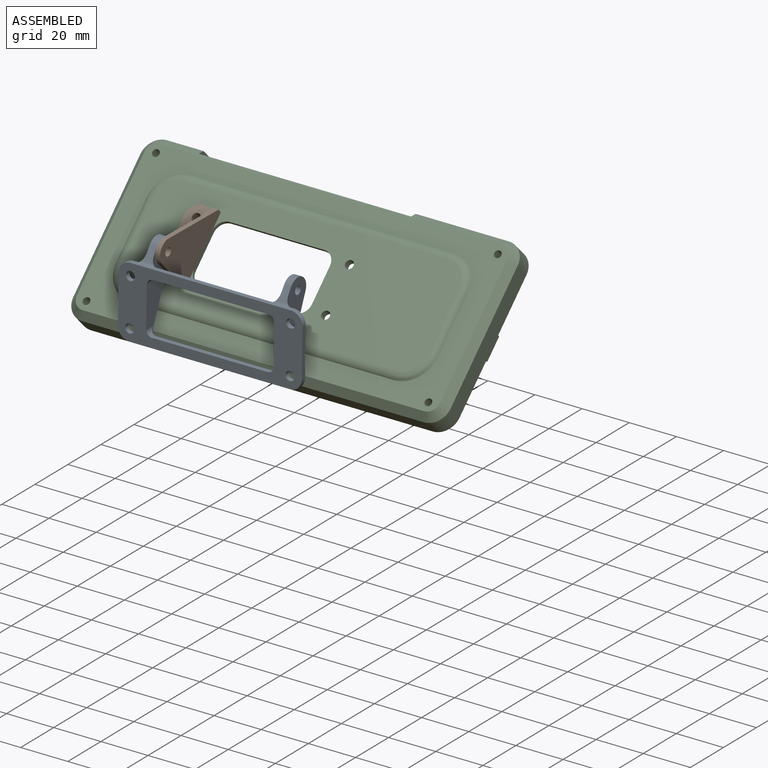
[diagram: assembled view]
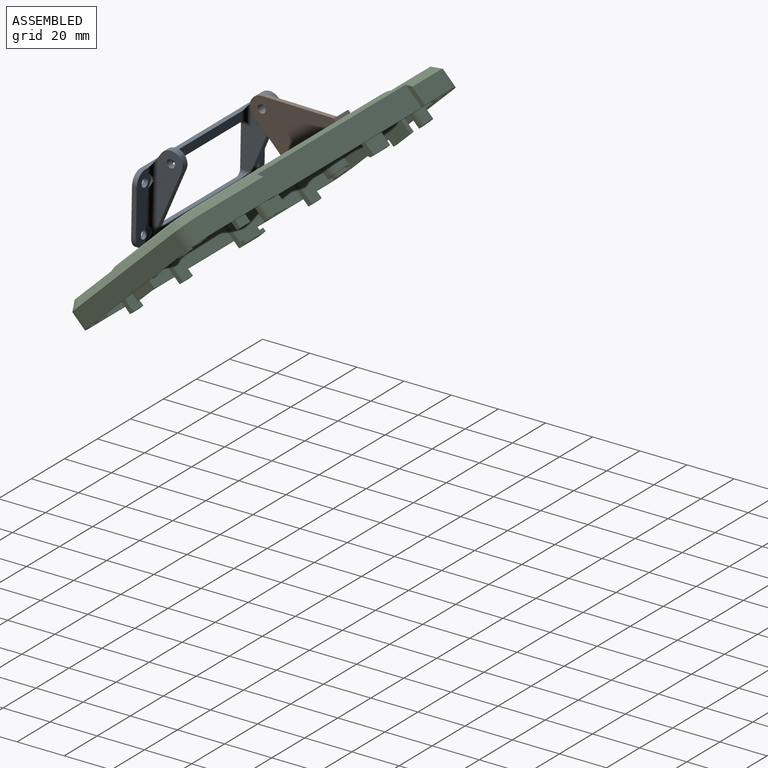
[diagram: assembled view, second angle]
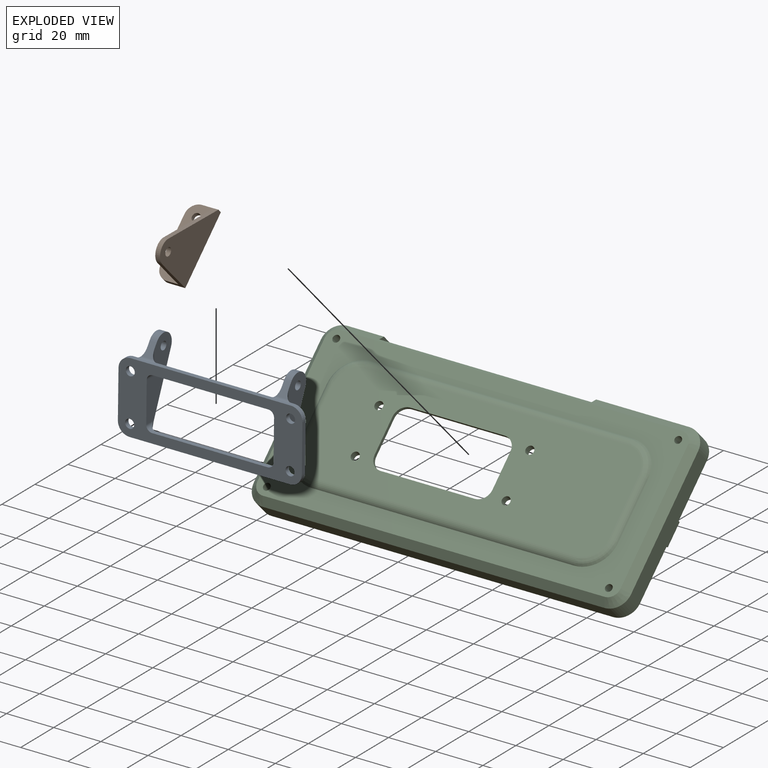
[diagram: exploded view]
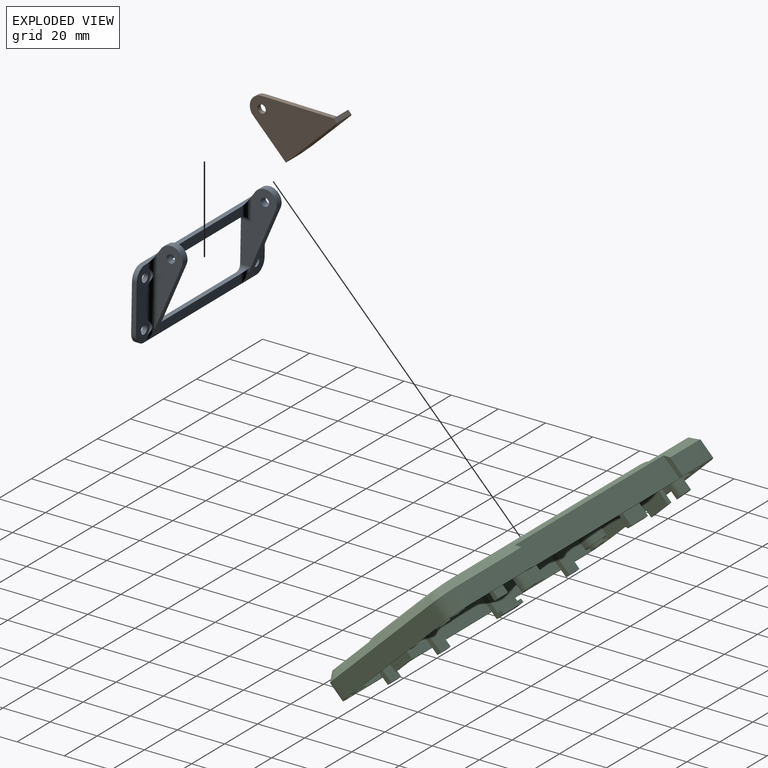
[diagram: exploded view, second angle]
ASSEMBLY  parts=3 mates=4
PART A: 55 faces, bbox 38.4x78.4x15.4 mm
  f0: cylinder r=1.91mm len=3.81mm, axis (0,0,1), area 23.9mm2, adj f1,f54
  f1: plane 30x8.5mm, normal (0,0,1), area 179.6mm2, adj f0,f2,f3,f46,f47,f48,f49,f50
  f2: cylinder r=3.5mm len=6.32mm, axis (0,0,-1), area 0mm2, adj f1,f52
  f3: plane 68x2mm, normal (1,0,0), area 136mm2, adj f1,f4,f7,f41,f42,f43,f46,f54
  f4: cylinder r=5mm len=5mm, axis (0,0,-1), area 15.7mm2, adj f3,f5,f43,f54
  f5: plane 20x2mm, normal (0,1,0), area 40mm2, adj f4,f6,f43,f54
  f6: cylinder r=5mm len=5mm, axis (0,0,1), area 15.7mm2, adj f5,f43,f49,f54
  f7: plane 31.12x12.63mm, normal (0.38,0,0.93), area 107.9mm2, adj f3,f8,f38,f39,f40,f52
  f8: plane 31.84x10.53mm, normal (0,-1,0), area 176.5mm2, adj f7,f9,f10,f11,f38,f50,f52
  f9: cylinder r=1.75mm len=3.5mm, axis (0,1,0), area 33mm2, adj f8,f39
  f10: bspline ~3.58x2.82mm, area 4.2mm2, adj f8,f50,f51,f52
  f11: plane 5.56x5.51mm, normal (-0.55,0,-0.83), area 20.8mm2, adj f8,f12,f15,f38,f39,f50
  f12: cylinder r=1.5mm len=5.15mm, axis (0,-1,0), area 7.6mm2, adj f11,f13,f14,f49
  f13: bspline ~1.9x1.38mm, area 0.8mm2, adj f12,f15,f49
  f14: bspline ~1.55x1.28mm, area 0.8mm2, adj f12,f49,f50
  f15: cylinder r=2.5mm len=10.26mm, axis (-1,0,0), area 26.5mm2, adj f11,f13,f16,f37,f39
  f16: cylinder r=2.5mm len=4.5mm, axis (0,0,-1), area 12.8mm2, adj f15,f17,f39,f54
  f17: plane 49x2mm, normal (1,0,0), area 98mm2, adj f16,f18,f37,f54
  f18: cylinder r=2.5mm len=4.5mm, axis (0,0,-1), area 12.8mm2, adj f17,f19,f32,f54
  f19: cylinder r=2.5mm len=10.26mm, axis (1,0,0), area 26.5mm2, adj f18,f20,f31,f32,f37
  f20: bspline ~1.55x1.28mm, area 0.8mm2, adj f19,f21,f49
  f21: cylinder r=1.5mm len=5.15mm, axis (0,1,0), area 7.6mm2, adj f20,f22,f31,f49
  f22: bspline ~1.9x1.38mm, area 0.8mm2, adj f21,f23,f49
  f23: cylinder r=2.5mm len=7.58mm, axis (-1,0,0), area 18.9mm2, adj f22,f24,f27,f30,f31,f43
  f24: cylinder r=3.5mm len=6.32mm, axis (0,0,-1), area 3.9mm2, adj f23,f25,f30,f43
  f25: cylinder r=2.5mm len=23.83mm, axis (-1,0,0), area 72.8mm2, adj f24,f26,f27,f30,f42,f43
  f26: cylinder r=3.5mm len=6.32mm, axis (0,0,-1), area 0mm2, adj f25,f43
  f27: plane 31.84x10.53mm, normal (0,1,0), area 176.5mm2, adj f23,f25,f28,f29,f30,f31,f42
  f28: cylinder r=1.75mm len=3.5mm, axis (0,-1,0), area 33mm2, adj f27,f32
  f29: cylinder r=5mm len=9.16mm, axis (0,-1,0), area 44.1mm2, adj f27,f31,f32,f42
  f30: bspline ~3.16x2.77mm, area 4.2mm2, adj f23,f24,f25,f27
  f31: plane 5.56x5.51mm, normal (-0.55,0,-0.83), area 20.8mm2, adj f19,f21,f23,f27,f29,f32
  f32: plane 31.84x15mm, normal (0,-1,0), area 252.9mm2, adj f18,f19,f28,f29,f31,f33,f34,f42
  f33: cylinder r=2.5mm len=6.5mm, axis (1,0,0), area 10.5mm2, adj f32,f34,f41,f42
  f34: cylinder r=2.5mm len=4.5mm, axis (0,0,1), area 12.8mm2, adj f32,f33,f35,f54
  f35: plane 49x2mm, normal (-1,0,0), area 98mm2, adj f34,f36,f41,f54
  f36: cylinder r=2.5mm len=4.5mm, axis (0,0,1), area 12.8mm2, adj f35,f39,f40,f54
  f37: plane 49x4mm, normal (0,0,1), area 196mm2, adj f15,f17,f19,f49
  f38: cylinder r=5mm len=9.16mm, axis (0,1,0), area 44.1mm2, adj f7,f8,f11,f39
  f39: plane 31.84x15mm, normal (0,1,0), area 252.9mm2, adj f7,f9,f11,f15,f16,f36,f38,f40
  f40: cylinder r=2.5mm len=6.5mm, axis (1,0,0), area 10.5mm2, adj f7,f36,f39,f41
  f41: plane 49x4mm, normal (0,0,1), area 196mm2, adj f3,f33,f35,f40
  f42: plane 31.12x12.63mm, normal (0.38,0,0.93), area 107.9mm2, adj f3,f25,f27,f29,f32,f33
  f43: plane 30x8.5mm, normal (0,0,1), area 179.6mm2, adj f3,f4,f5,f6,f23,f24,f25,f26
  f44: cylinder r=1.91mm len=3.81mm, axis (0,0,1), area 23.9mm2, adj f43,f54
  f45: cylinder r=1.91mm len=3.81mm, axis (0,0,1), area 23.9mm2, adj f43,f54
  f46: cylinder r=5mm len=5mm, axis (0,0,-1), area 15.7mm2, adj f1,f3,f47,f54
  f47: plane 20x2mm, normal (0,-1,0), area 40mm2, adj f1,f46,f48,f54
  f48: cylinder r=5mm len=5mm, axis (0,0,1), area 15.7mm2, adj f1,f47,f49,f54
  f49: plane 68x2mm, normal (-1,0,0), area 124.3mm2, adj f1,f6,f12,f13,f14,f20,f21,f22
  f50: cylinder r=2.5mm len=7.58mm, axis (-1,0,0), area 18.9mm2, adj f1,f8,f10,f11,f14,f51
  f51: cylinder r=3.5mm len=6.32mm, axis (0,0,-1), area 3.9mm2, adj f1,f10,f50,f52
  f52: cylinder r=2.5mm len=23.83mm, axis (-1,0,0), area 72.8mm2, adj f1,f2,f7,f8,f10,f51
  f53: cylinder r=1.91mm len=3.81mm, axis (0,0,1), area 23.9mm2, adj f1,f54
  f54: plane 78x30mm, normal (0,0,-1), area 1090.3mm2, adj f0,f3,f4,f5,f6,f16,f17,f18
PART B: 16 faces, bbox 30x12x25 mm
  f0: plane 2x0.03mm, normal (0,0,1), area 0.1mm2, adj f1,f5,f9,f11
  f1: plane 30x25mm, normal (0,-1,0), area 472.3mm2, adj f0,f2,f6,f7,f8,f9,f11,f15
  f2: plane 30x12mm, normal (0,0,-1), area 330mm2, adj f1,f3,f6,f7,f10,f12,f13,f14
  f3: plane 20x2mm, normal (0,1,0), area 40mm2, adj f2,f4,f10,f12
  f4: plane 30x10mm, normal (0,0,1), area 270mm2, adj f3,f5,f6,f7,f10,f12,f13,f14
  f5: plane 30x23mm, normal (0,1,0), area 412.3mm2, adj f0,f4,f6,f7,f8,f9,f11,f15
  f6: plane 7x2.1mm, normal (1,0,0), area 14.2mm2, adj f1,f2,f4,f5,f8,f12
  f7: plane 20x7mm, normal (-1,0,0), area 50mm2, adj f1,f2,f4,f5,f10,f11
  f8: plane 21.44x21.44mm, normal (0.71,0,0.71), area 60.6mm2, adj f1,f5,f6,f9
  f9: cylinder r=5mm len=3.54mm, axis (0,-1,0), area 7.9mm2, adj f0,f1,f5,f8
  f10: cylinder r=5mm len=5mm, axis (0,0,1), area 15.7mm2, adj f2,f3,f4,f7
  f11: cylinder r=5mm len=5mm, axis (0,-1,0), area 15.7mm2, adj f0,f1,f5,f7
  f12: cylinder r=5mm len=5mm, axis (0,0,-1), area 15.7mm2, adj f2,f3,f4,f6
  f13: cylinder r=1.75mm len=3.5mm, axis (0,0,1), area 22mm2, adj f2,f4
  f14: cylinder r=1.75mm len=3.5mm, axis (0,0,1), area 22mm2, adj f2,f4
  f15: cylinder r=1.75mm len=3.5mm, axis (0,-1,0), area 22mm2, adj f1,f5
PART C: 206 faces, bbox 160.1x17.6x71.6 mm
  f0: plane 23.25x2.12mm, normal (0.71,0.71,0), area 69.2mm2, adj f17,f61,f74,f88,f147
  f1: plane 19.5x2.12mm, normal (0,0.71,0.71), area 53mm2, adj f17,f26,f73,f104,f137
  f2: plane 23.25x2.12mm, normal (-0.71,0.71,0), area 69.2mm2, adj f17,f25,f69,f108,f132
  f3: plane 16x2.12mm, normal (0,0.71,-0.71), area 42.5mm2, adj f17,f24,f69,f114,f132
  f4: plane 30x2.12mm, normal (0,0.71,0.71), area 90mm2, adj f17,f27,f94,f169
  f5: plane 7.57x2.12mm, normal (0,0.71,0.71), area 22.7mm2, adj f17,f20,f99,f152
  f6: plane 30x2.12mm, normal (0,0.71,0.71), area 90mm2, adj f9,f17,f96,f168
  f7: plane 129.98x43.9mm, normal (0,-1,0), area 4362.9mm2, adj f48,f49,f50,f51,f52,f53,f54,f55
  f8: plane 129.98x43.9mm, normal (0,1,0), area 4087.3mm2, adj f18,f76,f77,f78,f79,f80,f81,f82
  f9: plane 30x7.13mm, normal (0,0,1), area 213.9mm2, adj f6,f29,f96,f168
  f10: plane 10x2mm, normal (0,1,0), area 20mm2, adj f11,f14,f15,f16
  f11: plane 13x10mm, normal (0,0,1), area 130mm2, adj f10,f15,f16,f195
  f12: plane 11.67x10mm, normal (0,0,-1), area 116.7mm2, adj f13,f15,f16,f196
  f13: plane 10x2mm, normal (0,-1,0), area 20mm2, adj f12,f14,f15,f16
  f14: plane 10x2.8mm, normal (0,0.58,-0.81), area 34.4mm2, adj f10,f13,f15,f16
  f15: plane 15.45x5mm, normal (1,0,0), area 31.8mm2, adj f10,f11,f12,f13,f14,f17,f18,f195
  f16: plane 15.45x5mm, normal (-1,0,0), area 31.8mm2, adj f10,f11,f12,f13,f14,f17,f18,f195
  f17: plane 152.76x64.26mm, normal (0,1,0), area 3018.3mm2, adj f0,f1,f2,f3,f4,f5,f6,f15
  f18: cylinder r=2.5mm len=111.22mm, axis (-1,0,0), area 274.5mm2, adj f8,f15,f16,f17,f76,f77,f161,f162
  f19: plane 6.43x2.12mm, normal (0,0.71,0.71), area 19.3mm2, adj f17,f20,f101,f153
  f20: plane 24x7.13mm, normal (0,0,1), area 132.3mm2, adj f5,f19,f29,f99,f101,f152,f153,f155
  f21: plane 89.91x9.13mm, normal (0,0,-1), area 820.8mm2, adj f29,f60,f119,f125
  f22: plane 14x2.12mm, normal (0,0.71,-0.71), area 34.9mm2, adj f17,f63,f70,f83,f125,f142
  f23: plane 16.06x2.18mm, normal (0,0.71,-0.71), area 47.9mm2, adj f17,f59,f84,f111,f120
  f24: plane 16x7.13mm, normal (0,0,-1), area 114.1mm2, adj f3,f29,f64,f114
  f25: plane 23.25x7.13mm, normal (-1,0,0), area 165.7mm2, adj f2,f29,f64,f108
  f26: plane 19.5x7.13mm, normal (0,0,1), area 139mm2, adj f1,f29,f66,f104
  f27: plane 30x7.13mm, normal (0,0,1), area 213.9mm2, adj f4,f29,f94,f169
  f28: plane 23.25x7.13mm, normal (1,0,0), area 165.7mm2, adj f29,f62,f72,f86
  f29: plane 160x71.5mm, normal (0,1,0), area 673.1mm2, adj f9,f20,f21,f24,f25,f26,f27,f28
  f30: plane 39.5x7.75mm, normal (0,0,1), area 306.1mm2, adj f29,f31,f35,f57
  f31: plane 145x3mm, normal (0,-0.71,0.71), area 360.6mm2, adj f30,f34,f40,f41,f42,f56,f57,f58
  f32: plane 56.5x7.75mm, normal (-1,0,0), area 437.9mm2, adj f29,f33,f39,f44
  f33: cylinder r=7.5mm len=7.75mm, axis (0,1,0), area 91.3mm2, adj f29,f32,f34,f42
  f34: plane 15.5x7.75mm, normal (0,0,1), area 120.1mm2, adj f29,f31,f33,f56
  f35: cylinder r=7.5mm len=7.75mm, axis (0,1,0), area 91.3mm2, adj f29,f30,f36,f41
  f36: plane 56.5x7.75mm, normal (1,0,0), area 437.9mm2, adj f29,f35,f37,f43
  f37: cylinder r=7.5mm len=7.75mm, axis (0,1,0), area 91.3mm2, adj f29,f36,f38,f45
  f38: plane 145x7.75mm, normal (0,0,-1), area 1123.7mm2, adj f29,f37,f39,f47
  f39: cylinder r=7.5mm len=7.75mm, axis (0,1,0), area 91.3mm2, adj f29,f32,f38,f46
  f40: plane 154x65.5mm, normal (0,-1,0), area 3345.2mm2, adj f31,f41,f42,f43,f44,f45,f46,f47
  f41: cone r=7.5mm half-angle=45deg, axis (0,1,0), area 40mm2, adj f31,f35,f40,f43
  f42: cone r=7.5mm half-angle=45deg, axis (0,1,0), area 40mm2, adj f31,f33,f40,f44
  f43: plane 56.5x3mm, normal (0.71,-0.71,0), area 239.7mm2, adj f36,f40,f41,f45
  f44: plane 56.5x3mm, normal (-0.71,-0.71,0), area 239.7mm2, adj f32,f40,f42,f46
  f45: cone r=7.5mm half-angle=45deg, axis (0,1,0), area 40mm2, adj f37,f40,f43,f47
  f46: cone r=7.5mm half-angle=45deg, axis (0,1,0), area 40mm2, adj f39,f40,f44,f47
  f47: plane 145x3mm, normal (0,-0.71,-0.71), area 615.2mm2, adj f38,f40,f45,f46
  f48: cylinder r=4mm len=111.22mm, axis (-1,0,0), area 398.5mm2, adj f7,f40,f49,f50
  f49: torus R=9.38mm, axis (0,1,0), area 62.2mm2, adj f7,f40,f48,f51
  f50: torus R=9.38mm, axis (0,1,0), area 62.2mm2, adj f7,f40,f48,f52
  f51: cylinder r=4mm len=25.14mm, axis (0,0,-1), area 90.1mm2, adj f7,f40,f49,f53
  f52: cylinder r=4mm len=25.14mm, axis (0,0,-1), area 90.1mm2, adj f7,f40,f50,f54
  f53: torus R=9.38mm, axis (0,1,0), area 62.2mm2, adj f7,f40,f51,f55
  f54: torus R=9.38mm, axis (0,1,0), area 62.2mm2, adj f7,f40,f52,f55
  f55: cylinder r=4mm len=111.22mm, axis (-1,0,0), area 398.5mm2, adj f7,f40,f53,f54
  f56: plane 9.75x2mm, normal (1,0,0), area 17.5mm2, adj f29,f31,f34,f58
  f57: plane 9.75x2mm, normal (-1,0,0), area 17.5mm2, adj f29,f30,f31,f58
  f58: plane 90x9.75mm, normal (0,0,1), area 877.5mm2, adj f29,f31,f56,f57
  f59: plane 16x7.13mm, normal (0,0,-1), area 114.1mm2, adj f23,f29,f84,f111
  f60: plane 89.92x0.12mm, normal (0,0.71,-0.71), area 15.4mm2, adj f17,f21,f119,f125
  f61: plane 23.25x7.13mm, normal (1,0,0), area 165.7mm2, adj f0,f29,f68,f88
  f62: cylinder r=6mm len=7.13mm, axis (0,1,0), area 67.2mm2, adj f28,f29,f63,f70
  f63: plane 14x7.13mm, normal (0,0,-1), area 99.8mm2, adj f22,f29,f62,f83
  f64: cylinder r=6mm len=7.13mm, axis (0,1,0), area 67.2mm2, adj f24,f25,f29,f69
  f65: plane 23.25x7.13mm, normal (-1,0,0), area 165.7mm2, adj f29,f66,f71,f106
  f66: cylinder r=6mm len=7.13mm, axis (0,1,0), area 67.2mm2, adj f26,f29,f65,f73
  f67: plane 11.5x7.13mm, normal (0,0,1), area 82mm2, adj f29,f68,f75,f91
  f68: cylinder r=6mm len=7.13mm, axis (0,1,0), area 67.2mm2, adj f29,f61,f67,f74
  f69: cone r=6.44mm half-angle=45deg, axis (0,1,0), area 11.2mm2, adj f2,f3,f64,f132
  f70: cone r=6.44mm half-angle=45deg, axis (0,1,0), area 11.2mm2, adj f22,f62,f72,f142
  f71: plane 23.25x2.12mm, normal (-0.71,0.71,0), area 69.2mm2, adj f17,f65,f73,f106,f137
  f72: plane 23.25x2.12mm, normal (0.71,0.71,0), area 69.2mm2, adj f17,f28,f70,f86,f142
  f73: cone r=6.44mm half-angle=45deg, axis (0,1,0), area 11.2mm2, adj f1,f66,f71,f137
  f74: cone r=6.44mm half-angle=45deg, axis (0,1,0), area 11.2mm2, adj f0,f68,f75,f147
  f75: plane 11.5x2.12mm, normal (0,0.71,0.71), area 29mm2, adj f17,f67,f74,f91,f147
  f76: torus R=9.38mm, axis (0,1,0), area 48.6mm2, adj f8,f17,f18,f78
  f77: torus R=9.38mm, axis (0,1,0), area 48.6mm2, adj f8,f17,f18,f79
  f78: cylinder r=2.5mm len=25.14mm, axis (0,0,-1), area 72.9mm2, adj f8,f17,f76,f80
  f79: cylinder r=2.5mm len=25.14mm, axis (0,0,-1), area 72.9mm2, adj f8,f17,f77,f81
  f80: torus R=9.38mm, axis (0,1,0), area 48.6mm2, adj f8,f17,f78,f82
  f81: torus R=9.38mm, axis (0,1,0), area 48.6mm2, adj f8,f17,f79,f82
  f82: cylinder r=2.5mm len=111.22mm, axis (-1,0,0), area 322.3mm2, adj f8,f17,f80,f81
  f83: plane 8.41x1.28mm, normal (-1,0,0), area 9.9mm2, adj f22,f29,f63,f125
  f84: plane 9.13x2mm, normal (1,0,0), area 16.3mm2, adj f23,f29,f59,f120
  f85: plane 10x3.25mm, normal (-1,0,0), area 32.5mm2, adj f29,f86,f88,f89
  f86: plane 12.5x2.16mm, normal (0,0,1), area 22.8mm2, adj f17,f28,f72,f85,f87,f89,f205
  f87: plane 11.96x10mm, normal (1,0,0), area 119.6mm2, adj f86,f88,f89,f205
  f88: plane 12.5x2.16mm, normal (0,0,-1), area 22.8mm2, adj f0,f17,f61,f85,f87,f89,f205
  f89: plane 10x2mm, normal (0,1,0), area 20mm2, adj f85,f86,f87,f88
  f90: plane 6x3.25mm, normal (0,0,-1), area 19.5mm2, adj f29,f91,f93,f94
  f91: plane 12.5x2.16mm, normal (-1,0,0), area 22.8mm2, adj f17,f67,f75,f90,f92,f93,f204
  f92: plane 11.96x6mm, normal (0,0,1), area 71.8mm2, adj f91,f93,f94,f204
  f93: plane 6x2mm, normal (0,1,0), area 12mm2, adj f90,f91,f92,f94
  f94: plane 12.5x2.16mm, normal (1,0,0), area 22.8mm2, adj f4,f17,f27,f90,f92,f93,f204
  f95: plane 6x3.25mm, normal (0,0,-1), area 19.5mm2, adj f29,f96,f98,f99
  f96: plane 12.5x2.16mm, normal (-1,0,0), area 22.8mm2, adj f6,f9,f17,f95,f97,f98,f203
  f97: plane 11.96x6mm, normal (0,0,1), area 71.8mm2, adj f96,f98,f99,f203
  f98: plane 6x2mm, normal (0,1,0), area 12mm2, adj f95,f96,f97,f99
  f99: plane 12.5x2.16mm, normal (1,0,0), area 22.8mm2, adj f5,f17,f20,f95,f97,f98,f203
  f100: plane 6x3.25mm, normal (0,0,-1), area 19.5mm2, adj f29,f101,f103,f104
  f101: plane 12.5x2.16mm, normal (-1,0,0), area 22.8mm2, adj f17,f19,f20,f100,f102,f103,f202
  f102: plane 11.96x6mm, normal (0,0,1), area 71.8mm2, adj f101,f103,f104,f202
  f103: plane 6x2mm, normal (0,1,0), area 12mm2, adj f100,f101,f102,f104
  f104: plane 12.5x2.16mm, normal (1,0,0), area 22.8mm2, adj f1,f17,f26,f100,f102,f103,f202
  f105: plane 10x3.25mm, normal (1,0,0), area 32.5mm2, adj f29,f106,f108,f109
  f106: plane 12.5x2.16mm, normal (0,0,-1), area 22.8mm2, adj f17,f65,f71,f105,f107,f109,f201
  f107: plane 11.96x10mm, normal (-1,0,0), area 119.6mm2, adj f106,f108,f109,f201
  f108: plane 12.5x2.16mm, normal (0,0,1), area 22.8mm2, adj f2,f17,f25,f105,f107,f109,f201
  f109: plane 10x2mm, normal (0,1,0), area 20mm2, adj f105,f106,f107,f108
  f110: plane 6x3.25mm, normal (0,0,1), area 19.5mm2, adj f29,f111,f112,f114
  f111: plane 12.5x2.16mm, normal (-1,0,0), area 22.8mm2, adj f17,f23,f59,f110,f112,f113,f200
  f112: plane 6x2mm, normal (0,1,0), area 12mm2, adj f110,f111,f113,f114
  f113: plane 11.96x6mm, normal (0,0,-1), area 71.8mm2, adj f111,f112,f114,f200
  f114: plane 12.5x2.16mm, normal (1,0,0), area 22.8mm2, adj f3,f17,f24,f110,f112,f113,f200
  f115: cylinder r=1.5mm len=9.25mm, axis (0,1,0), area 87.2mm2, adj f117,f118
  f116: cylinder r=3mm len=9.25mm, axis (0,1,0), area 174.4mm2, adj f17,f117
  f117: plane 6x6mm, normal (0,1,0), area 21.2mm2, adj f115,f116
  f118: plane 3x3mm, normal (0,1,0), area 7.1mm2, adj f115
  f119: plane 9.25x0.17mm, normal (-1,0,0), area 1.6mm2, adj f17,f21,f29,f60,f120
  f120: cylinder r=3mm len=14.5mm, axis (0,1,0), area 263.8mm2, adj f17,f23,f29,f84,f119,f126
  f121: cylinder r=1.5mm len=9.25mm, axis (0,1,0), area 87.2mm2, adj f123,f124
  f122: cylinder r=3mm len=9.25mm, axis (0,1,0), area 174.4mm2, adj f17,f123
  f123: plane 6x6mm, normal (0,1,0), area 21.2mm2, adj f121,f122
  f124: plane 3x3mm, normal (0,1,0), area 7.1mm2, adj f121
  f125: cylinder r=3mm len=14.5mm, axis (0,1,0), area 251.2mm2, adj f17,f21,f22,f29,f60,f83,f129
  f126: plane 6x6mm, normal (0,1,0), area 21.2mm2, adj f120,f128
  f127: plane 3x3mm, normal (0,1,0), area 7.1mm2, adj f128
  f128: cylinder r=1.5mm len=14.5mm, axis (0,1,0), area 136.7mm2, adj f126,f127
  f129: plane 6x6mm, normal (0,1,0), area 21.2mm2, adj f125,f131
  f130: plane 3x3mm, normal (0,1,0), area 7.1mm2, adj f131
  f131: cylinder r=1.5mm len=14.5mm, axis (0,1,0), area 136.7mm2, adj f129,f130
  f132: cylinder r=4.5mm len=9mm, axis (0,1,0), area 211.7mm2, adj f2,f3,f17,f69,f133
  f133: plane 9x9mm, normal (0,1,0), area 35.3mm2, adj f132,f134
  f134: cylinder r=3mm len=6mm, axis (0,1,0), area 23.6mm2, adj f133,f135
  f135: plane 6x6mm, normal (0,1,0), area 21.2mm2, adj f134,f136
  f136: cylinder r=1.5mm len=10.75mm, axis (0,1,0), area 101.3mm2, adj f40,f135
  f137: cylinder r=4.5mm len=9mm, axis (0,1,0), area 211.7mm2, adj f1,f17,f71,f73,f138
  f138: plane 9x9mm, normal (0,1,0), area 35.3mm2, adj f137,f139
  f139: cylinder r=3mm len=6mm, axis (0,1,0), area 23.6mm2, adj f138,f140
  f140: plane 6x6mm, normal (0,1,0), area 21.2mm2, adj f139,f141
  f141: cylinder r=1.5mm len=10.75mm, axis (0,1,0), area 101.3mm2, adj f40,f140
  f142: cylinder r=4.5mm len=9mm, axis (0,1,0), area 211.7mm2, adj f17,f22,f70,f72,f143
  f143: plane 9x9mm, normal (0,1,0), area 35.3mm2, adj f142,f144
  f144: cylinder r=3mm len=6mm, axis (0,1,0), area 23.6mm2, adj f143,f145
  f145: plane 6x6mm, normal (0,1,0), area 21.2mm2, adj f144,f146
  f146: cylinder r=1.5mm len=10.75mm, axis (0,1,0), area 101.3mm2, adj f40,f145
  f147: cylinder r=4.5mm len=9mm, axis (0,1,0), area 211.7mm2, adj f0,f17,f74,f75,f148
  f148: plane 9x9mm, normal (0,1,0), area 35.3mm2, adj f147,f149
  f149: cylinder r=3mm len=6mm, axis (0,1,0), area 23.6mm2, adj f148,f150
  f150: plane 6x6mm, normal (0,1,0), area 21.2mm2, adj f149,f151
  f151: cylinder r=1.5mm len=10.75mm, axis (0,1,0), area 101.3mm2, adj f40,f150
  f152: plane 6x4.35mm, normal (-1,0,0), area 18.1mm2, adj f5,f17,f20,f154,f155,f199
  f153: plane 6x4.35mm, normal (1,0,0), area 18.1mm2, adj f17,f19,f20,f154,f155,f199
  f154: plane 10x5mm, normal (0,0,1), area 50mm2, adj f152,f153,f155,f199
  f155: plane 10x3.35mm, normal (0,1,0), area 33.5mm2, adj f20,f152,f153,f154
  f156: plane 11.67x10mm, normal (0,0,-1), area 116.7mm2, adj f159,f161,f162,f197
  f157: plane 10x2mm, normal (0,1,0), area 20mm2, adj f158,f160,f161,f162
  f158: plane 13x10mm, normal (0,0,1), area 130mm2, adj f157,f161,f162,f198
  f159: plane 10x2mm, normal (0,-1,0), area 20mm2, adj f156,f160,f161,f162
  f160: plane 10x2.8mm, normal (0,0.58,-0.81), area 34.4mm2, adj f157,f159,f161,f162
  f161: plane 15.45x5mm, normal (-1,0,0), area 31.8mm2, adj f17,f18,f156,f157,f158,f159,f160,f197
  f162: plane 15.45x5mm, normal (1,0,0), area 31.8mm2, adj f17,f18,f156,f157,f158,f159,f160,f197
  f163: plane 12x3.25mm, normal (0,0,-1), area 39mm2, adj f29,f164,f168,f169
  f164: plane 12x4mm, normal (0,1,0), area 48mm2, adj f163,f167,f168,f169
  f165: plane 12x10.46mm, normal (0,0,1), area 125.6mm2, adj f166,f168,f169,f194
  f166: plane 12x2mm, normal (0,-1,0), area 24mm2, adj f165,f167,f168,f169
  f167: plane 12x1.5mm, normal (0,0,1), area 18mm2, adj f164,f166,f168,f169
  f168: plane 12.5x4mm, normal (1,0,0), area 25.8mm2, adj f6,f9,f17,f163,f164,f165,f166,f167
  f169: plane 12.5x4mm, normal (-1,0,0), area 25.8mm2, adj f4,f17,f27,f163,f164,f165,f166,f167
  f170: plane 15x1.5mm, normal (1,0,0), area 22.5mm2, adj f7,f8,f171,f177
  f171: cylinder r=5mm len=5mm, axis (0,-1,0), area 11.8mm2, adj f7,f8,f170,f172
  f172: plane 40x1.5mm, normal (0,0,1), area 60mm2, adj f7,f8,f171,f173
  f173: cylinder r=5mm len=5mm, axis (0,-1,0), area 11.8mm2, adj f7,f8,f172,f174
  f174: plane 15x1.5mm, normal (-1,0,0), area 22.5mm2, adj f7,f8,f173,f175
  f175: cylinder r=5mm len=5mm, axis (0,-1,0), area 11.8mm2, adj f7,f8,f174,f176
  f176: plane 40x1.5mm, normal (0,0,-1), area 60mm2, adj f7,f8,f175,f177
  f177: cylinder r=5mm len=5mm, axis (0,-1,0), area 11.8mm2, adj f7,f8,f170,f176
  f178: cylinder r=4mm len=8mm, axis (0,-1,0), area 12.6mm2, adj f179,f193
  f179: plane 8x8mm, normal (0,1,0), area 40.6mm2, adj f178,f189
  f180: cylinder r=4mm len=8mm, axis (0,-1,0), area 12.6mm2, adj f181,f192
  f181: plane 8x8mm, normal (0,1,0), area 40.6mm2, adj f180,f188
  f182: cylinder r=4mm len=8mm, axis (0,-1,0), area 12.6mm2, adj f183,f191
  f183: plane 8x8mm, normal (0,1,0), area 40.6mm2, adj f182,f187
  f184: cylinder r=4mm len=8mm, axis (0,-1,0), area 12.6mm2, adj f185,f190
  f185: plane 8x8mm, normal (0,1,0), area 40.6mm2, adj f184,f186
  f186: cylinder r=1.75mm len=3.5mm, axis (0,-1,0), area 33mm2, adj f7,f185
  f187: cylinder r=1.75mm len=3.5mm, axis (0,-1,0), area 33mm2, adj f7,f183
  f188: cylinder r=1.75mm len=3.5mm, axis (0,-1,0), area 33mm2, adj f7,f181
  f189: cylinder r=1.75mm len=3.5mm, axis (0,-1,0), area 33mm2, adj f7,f179
  f190: torus R=5mm, axis (0,-1,0), area 43.1mm2, adj f8,f184
  f191: torus R=5mm, axis (0,-1,0), area 43.1mm2, adj f8,f182
  f192: torus R=5mm, axis (0,-1,0), area 43.1mm2, adj f8,f180
  f193: torus R=5mm, axis (0,-1,0), area 43.1mm2, adj f8,f178
  f194: cylinder r=1mm len=12mm, axis (1,0,0), area 6.8mm2, adj f17,f165,f168,f169
  f195: cylinder r=1mm len=10mm, axis (-1,0,0), area 15.7mm2, adj f11,f15,f16,f17
  f196: cylinder r=1mm len=10mm, axis (-1,0,0), area 13.7mm2, adj f12,f15,f16,f18
  f197: cylinder r=1mm len=10mm, axis (-1,0,0), area 13.7mm2, adj f18,f156,f161,f162
  f198: cylinder r=1mm len=10mm, axis (-1,0,0), area 15.7mm2, adj f17,f158,f161,f162
  f199: cylinder r=1mm len=10mm, axis (1,0,0), area 15.7mm2, adj f17,f152,f153,f154
  f200: cylinder r=1mm len=6mm, axis (1,0,0), area 3.4mm2, adj f17,f111,f113,f114
  f201: cylinder r=1mm len=10mm, axis (0,0,1), area 5.7mm2, adj f17,f106,f107,f108
  f202: cylinder r=1mm len=6mm, axis (1,0,0), area 3.4mm2, adj f17,f101,f102,f104
  f203: cylinder r=1mm len=6mm, axis (1,0,0), area 3.4mm2, adj f17,f96,f97,f99
  f204: cylinder r=1mm len=6mm, axis (1,0,0), area 3.4mm2, adj f17,f91,f92,f94
  f205: cylinder r=1mm len=10mm, axis (0,0,1), area 5.7mm2, adj f17,f86,f87,f88
PLACE A rot(axis=(-0.58,0.58,0.57),120.6deg) t=(-59.31,-44.5,-4.78)mm fixed
PLACE B rot(axis=(0.35,-0.35,0.87),98.1deg) t=(-57.31,-24.13,-19.82)mm
PLACE C rot(axis=(-1,0,0),45.9deg) t=(-20.31,-7.26,-15.67)mm
MATE revolute A.f9 <-> B.f11  axis (1,0,0) through (-59.31,-34.45,-1.97)mm
MATE cylindrical B.f10 <-> C.f178  axis (0,-0.7,0.72) through (-64.31,-21.93,-14.9)mm
MATE cylindrical B.f12 <-> C.f180  axis (0,-0.7,0.72) through (-64.31,-7.56,-0.99)mm
MATE planar B.f2 <-> C.f7  axis (0,0.7,-0.72) through (-63.09,-13.35,-9.38)mm
